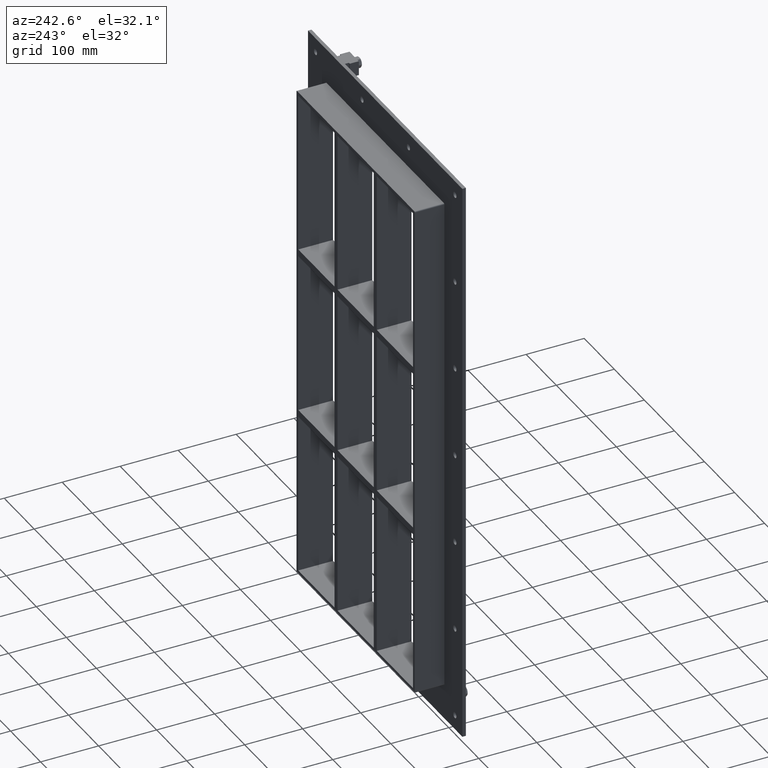
[diagram: clean part render]
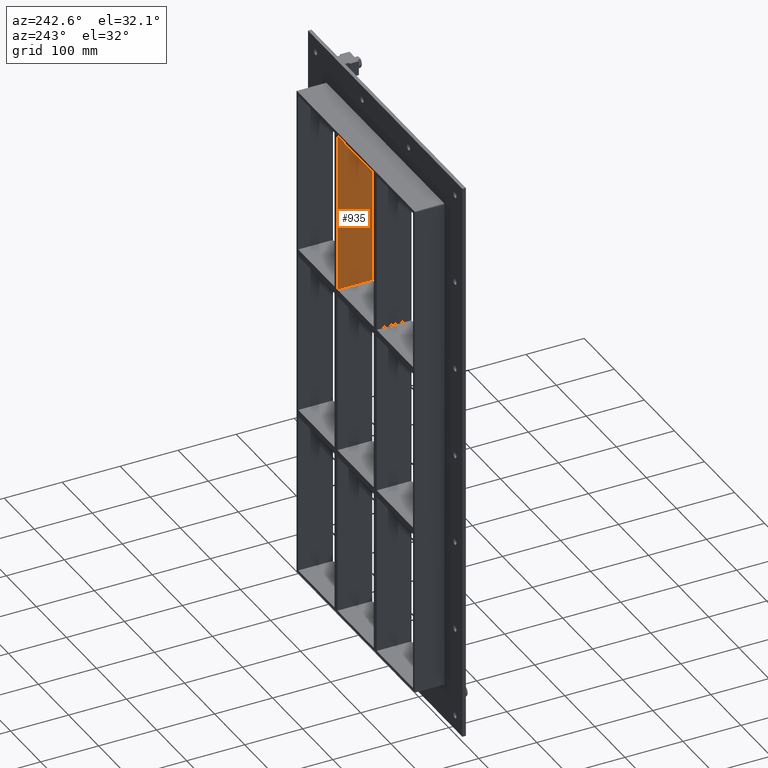
[diagram: same view with one face highlighted and labeled with its STEP entity id]
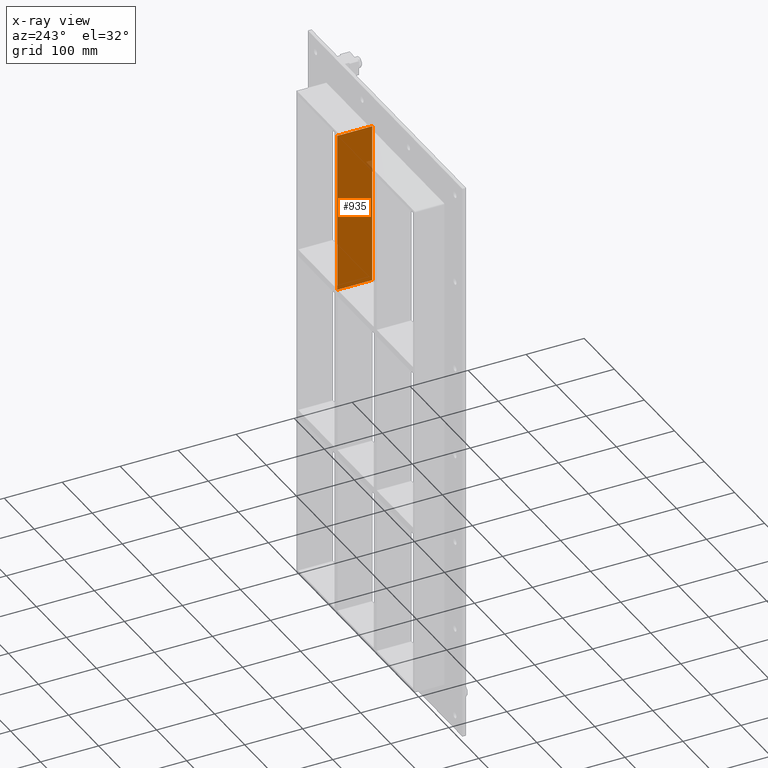
[diagram: x-ray of the same camera — body ghosted, the highlighted face saturated]
A machine part, auxiliary view. The second image highlights one B-rep face of the part: STEP entity #935.
The next image is the same camera in x-ray: the body ghosted, the highlighted face saturated — about 1% of this face is hidden behind the body in this view.
In plain terms, the highlighted planar face has unit normal (-1, 0, 0).
Its self-contained STEP definition (entity closure, byte-faithful):
#777=CARTESIAN_POINT('',(60.249999999999631,57.0,151.00000000000023));
#778=VERTEX_POINT('',#777);
#779=CARTESIAN_POINT('',(60.249999999999631,-3.0,151.00000000000023));
#780=VERTEX_POINT('',#779);
#781=CARTESIAN_POINT('',(60.249999999999631,57.0,151.00000000000023));
#782=DIRECTION('',(0.0,-1.0,0.0));
#783=VECTOR('',#782,60.0);
#784=LINE('',#781,#783);
#785=EDGE_CURVE('',#778,#780,#784,.T.);
#905=CARTESIAN_POINT('',(60.249999999999737,-3.0,-429.00000000000006));
#906=DIRECTION('',(-1.0,0.0,0.0));
#907=DIRECTION('',(0.0,0.0,1.0));
#908=AXIS2_PLACEMENT_3D('',#905,#906,#907);
#909=PLANE('',#908);
#910=ORIENTED_EDGE('',*,*,#785,.T.);
#911=CARTESIAN_POINT('',(60.249999999999574,-3.0,429.00000000000006));
#912=VERTEX_POINT('',#911);
#913=CARTESIAN_POINT('',(60.249999999999631,-3.0,151.00000000000017));
#914=DIRECTION('',(0.0,0.0,1.0));
#915=VECTOR('',#914,277.99999999999989);
#916=LINE('',#913,#915);
#917=EDGE_CURVE('',#780,#912,#916,.T.);
#918=ORIENTED_EDGE('',*,*,#917,.T.);
#919=CARTESIAN_POINT('',(60.249999999999574,57.0,429.00000000000006));
#920=VERTEX_POINT('',#919);
#921=CARTESIAN_POINT('',(60.249999999999567,57.000000000000007,429.00000000000006));
#922=DIRECTION('',(0.0,-1.0,0.0));
#923=VECTOR('',#922,60.000000000000007);
#924=LINE('',#921,#923);
#925=EDGE_CURVE('',#920,#912,#924,.T.);
#926=ORIENTED_EDGE('',*,*,#925,.F.);
#927=CARTESIAN_POINT('',(60.249999999999631,57.0,151.00000000000017));
#928=DIRECTION('',(0.0,0.0,1.0));
#929=VECTOR('',#928,277.99999999999989);
#930=LINE('',#927,#929);
#931=EDGE_CURVE('',#778,#920,#930,.T.);
#932=ORIENTED_EDGE('',*,*,#931,.F.);
#933=EDGE_LOOP('',(#910,#918,#926,#932));
#934=FACE_OUTER_BOUND('',#933,.T.);
#935=ADVANCED_FACE('',(#934),#909,.T.);